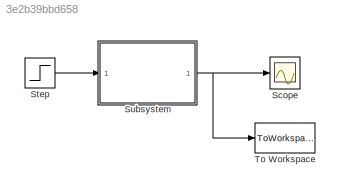
MODEL slx_3e2b39bbd658
KIND model
CONFIG AbsTol = auto
CONFIG FixedStep = auto
CONFIG MaxStep = auto
CONFIG MinStep = auto
CONFIG RelTol = 1e-3
CONFIG SampleTimeConstraint = Unconstrained
CONFIG Solver = ode45
CONFIG SolverMode = SingleTasking
CONFIG SolverName = ode45
CONFIG StartTime = 0.0
CONFIG StopTime = 10
BLOCK [Scope] Scope
  DataFormat = StructureWithTime
  Decimation = 1
  Grid = on
  LimitDataPoints = off
  MaxDataPoints = 5000
  NumInputPorts = 1
  Ports = [1]
  SampleInput = off
  SampleTime = -1
  SaveName = ScopeData
  SaveToWorkspace = off
  ShowLegends = off
  TickLabels = OneTimeTick
  TimeRange = auto
  YMax = 2.02474
  YMin = -0.22497
  ZoomMode = on
BLOCK [Step] Step
  SampleTime = 0
  Time = 0
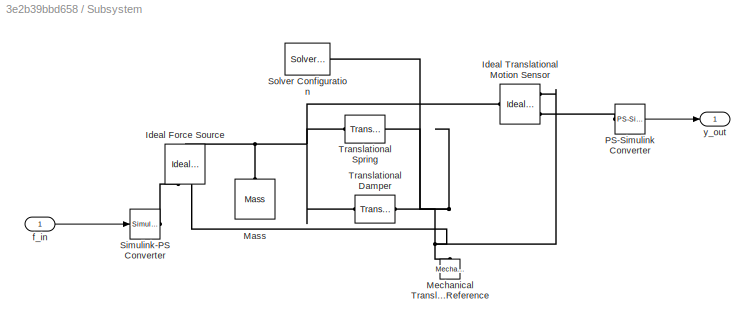
BLOCK [SubSystem] Subsystem
  Ports = [1, 1]
  RequestExecContextInheritance = off
  Variant = off
BLOCK [Reference] Subsystem/Ideal Force Source  REF=fl_lib/Mechanical/Mechanical Sources/Ideal Force Source
  ClassName = force
  ComponentPath = foundation.mechanical.sources.force
  ComponentVariantNames = force
  ComponentVariants = foundation.mechanical.sources.force
  LogSimulationData = off
  Ports = [0, 0, 0, 0, 0, 1, 2]
  SchemaVersion = 1
  SourceBlock = fl_lib/Mechanical/Mechanical Sources/Ideal Force Source
  SourceFile = foundation.mechanical.sources.force
  SourceType = Ideal Force Source
BLOCK [Reference] Subsystem/Ideal Translational Motion Sensor  REF=fl_lib/Mechanical/Mechanical Sensors/Ideal Translational
Motion Sensor
  ClassName = velocity
  ComponentPath = foundation.mechanical.sensors.velocity
  ComponentVariantNames = velocity
  ComponentVariants = foundation.mechanical.sensors.velocity
  LogSimulationData = off
  Ports = [0, 0, 0, 0, 0, 1, 3]
  SchemaVersion = 1
  SourceBlock = fl_lib/Mechanical/Mechanical Sensors/Ideal Translational\nMotion Sensor
  SourceFile = foundation.mechanical.sensors.velocity
  SourceType = Ideal Translational\nMotion Sensor
  offset = 0
  offset_conf = compiletime
  offset_unit = m
BLOCK [Reference] Subsystem/Mass  REF=fl_lib/Mechanical/Translational
Elements/Mass
  ClassName = mass
  ComponentPath = foundation.mechanical.translational.mass
  ComponentVariantNames = mass
  ComponentVariants = foundation.mechanical.translational.mass
  LogSimulationData = off
  Ports = [0, 0, 0, 0, 0, 1]
  SchemaVersion = 1
  SourceBlock = fl_lib/Mechanical/Translational\nElements/Mass
  SourceFile = foundation.mechanical.translational.mass
  SourceType = Mass
  f = 0
  f_nominal_specify = off
  f_nominal_unit = N
  f_nominal_value = 1
  f_priority = None
  f_specify = off
  f_unit = N
  mass = 1
  mass_conf = compiletime
  mass_unit = kg
  v = 0
  v_nominal_specify = off
  v_nominal_unit = m/s
  v_nominal_value = 1
  v_priority = High
  v_specify = off
  v_unit = m/s
BLOCK [Reference] Subsystem/Mechanical Translational Reference  REF=fl_lib/Mechanical/Translational
Elements/Mechanical
Translational
Reference
  ClassName = reference
  ComponentPath = foundation.mechanical.translational.reference
  ComponentVariantNames = reference
  ComponentVariants = foundation.mechanical.translational.reference
  LogSimulationData = off
  Ports = [0, 0, 0, 0, 0, 1]
  SchemaVersion = 1
  SourceBlock = fl_lib/Mechanical/Translational\nElements/Mechanical\nTranslational\nReference
  SourceFile = foundation.mechanical.translational.reference
  SourceType = Mechanical\nTranslational\nReference
BLOCK [Reference] Subsystem/PS-Simulink Converter  REF=nesl_utility/PS-Simulink
Converter
  AffineConversion = off
  Frequencies = []
  LeftPortType = input
  PhysicalDomain = network_engine_domain
  Ports = [0, 1, 0, 0, 0, 1]
  PseudoPeriodic = off
  RightPortType = output
  SourceBlock = nesl_utility/PS-Simulink\nConverter
  SourceType = PS-Simulink\nConverter
  SubClassName = ps_output
BLOCK [Reference] Subsystem/Simulink-PS Converter  REF=nesl_utility/Simulink-PS
Converter
  AffineConversion = off
  FilteringAndDerivatives = provide
  Frequencies = []
  InputFilterTimeConstant = 0.001
  LeftPortType = input
  NoiseDistribution = none
  NoiseParameters = []
  PhysicalDomain = network_engine_domain
  Ports = [1, 0, 0, 0, 0, 0, 1]
  PseudoPeriodic = off
  RightPortType = output
  SimscapeFilterOrder = 1
  SourceBlock = nesl_utility/Simulink-PS\nConverter
  SourceType = Simulink-PS\nConverter
  SubClassName = ps_input
  UdotUserProvided = 0
BLOCK [Reference] Subsystem/Solver Configuration  REF=nesl_utility/Solver
Configuration
  AbsTol = 1e-06
  Accelerate = off
  AutomaticFiltering = on
  DelaysMemoryBudget = 1024
  DoDC = off
  DoFixedCost = off
  EnableSwitchedLinearOptims = on
  FilteringTimeConstant = 0.001
  FrequencyDomain = off
  Harmonics = []
  LeftPortType = input
  LinearAlgebra = Sparse
  LocalSolverChoice = NE_BACKWARD_EULER_ADVANCER
  LocalSolverSampleTime = 0.001
  MaxModeIter = 2
  MaxNonlinIter = 3
  MinStep = 1e-09
  NumHomotopyIterations = 100
  OverrideAbsTol = off
  PhasorMode = off
  PhasorModeNumHarmonics = 1
  PhysicalDomain = network_engine_domain
  Ports = [0, 0, 0, 0, 0, 0, 1]
  Profile = off
  RelTol = 0.001
  ResidualTolerance = 1e-09
  RevertToSquareIcSolve = off
  RightPortType = generic
  SimulateNoise = off
  SourceBlock = nesl_utility/Solver\nConfiguration
  SourceType = Solver\nConfiguration
  SubClassName = solver
  ToWorkspace = off
  Tones = []
  UseCCode = off
  UseLocalSampling = off
  UseLocalSolver = off
BLOCK [Reference] Subsystem/Translational Damper  REF=fl_lib/Mechanical/Translational
Elements/Translational Damper
  ClassName = damper
  ComponentPath = foundation.mechanical.translational.damper
  ComponentVariantNames = damper
  ComponentVariants = foundation.mechanical.translational.damper
  D = 1
  D_conf = compiletime
  D_unit = N/(m/s)
  LogSimulationData = off
  Ports = [0, 0, 0, 0, 0, 1, 1]
  SchemaVersion = 1
  SourceBlock = fl_lib/Mechanical/Translational\nElements/Translational Damper
  SourceFile = foundation.mechanical.translational.damper
  SourceType = Translational Damper
  f = 0
  f_nominal_specify = off
  f_nominal_unit = N
  f_nominal_value = 1
  f_priority = None
  f_specify = off
  f_unit = N
  v = 0
  v_nominal_specify = off
  v_nominal_unit = m/s
  v_nominal_value = 1
  v_priority = None
  v_specify = off
  v_unit = m/s
BLOCK [Reference] Subsystem/Translational Spring  REF=fl_lib/Mechanical/Translational
Elements/Translational Spring
  ClassName = spring
  ComponentPath = foundation.mechanical.translational.spring
  ComponentVariantNames = spring
  ComponentVariants = foundation.mechanical.translational.spring
  LogSimulationData = off
  Ports = [0, 0, 0, 0, 0, 1, 1]
  SchemaVersion = 1
  SourceBlock = fl_lib/Mechanical/Translational\nElements/Translational Spring
  SourceFile = foundation.mechanical.translational.spring
  SourceType = Translational Spring
  f = 0
  f_nominal_specify = off
  f_nominal_unit = N
  f_nominal_value = 1
  f_priority = None
  f_specify = off
  f_unit = N
  spr_rate = 1
  spr_rate_conf = compiletime
  spr_rate_unit = N/m
  v = 0
  v_nominal_specify = off
  v_nominal_unit = m/s
  v_nominal_value = 1
  v_priority = None
  v_specify = off
  v_unit = m/s
  x = 0
  x_nominal_specify = off
  x_nominal_unit = m
  x_nominal_value = 1
  x_priority = High
  x_specify = off
  x_unit = m
BLOCK [Inport] Subsystem/f_in
  IconDisplay = Port number
BLOCK [Outport] Subsystem/y_out
  IconDisplay = Port number
BLOCK [ToWorkspace] To Workspace
  FixptAsFi = on
  MaxDataPoints = inf
  Ports = [1]
  SampleTime = -1
  Save2DSignal = 3-D array (concatenate along third dimension)
  SaveFormat = Timeseries
  VariableName = simout
LINE Step:1 -> Subsystem:1
LINE Subsystem/PS-Simulink Converter:1 -> Subsystem/y_out:1
LINE Subsystem/f_in:1 -> Subsystem/Simulink-PS Converter:1
NET Subsystem:1 -> Scope:1, To Workspace:1
PNET net1: Subsystem/Ideal Force Source:LConn1 -- Subsystem/Ideal Translational Motion Sensor:LConn1 -- Subsystem/Mass:LConn1 -- Subsystem/Translational Damper:LConn1 -- Subsystem/Translational Spring:LConn1
PLINE Subsystem/Ideal Force Source:RConn1 -- Subsystem/Simulink-PS Converter:RConn1
PNET net2: Subsystem/Ideal Force Source:RConn2 -- Subsystem/Ideal Translational Motion Sensor:RConn1 -- Subsystem/Mechanical Translational Reference:LConn1 -- Subsystem/Solver Configuration:RConn1 -- Subsystem/Translational Damper:RConn1 -- Subsystem/Translational Spring:RConn1
PLINE Subsystem/Ideal Translational Motion Sensor:RConn3 -- Subsystem/PS-Simulink Converter:LConn1
note: NET lines group one-source signal fan-out (src -> all destinations, sorted); 1:1 wires keep LINE; PNET lines group multi-terminal physical nets as a canonical sorted terminal list (undirected conserving connections); 2-terminal nets keep the pairwise PLINE form
